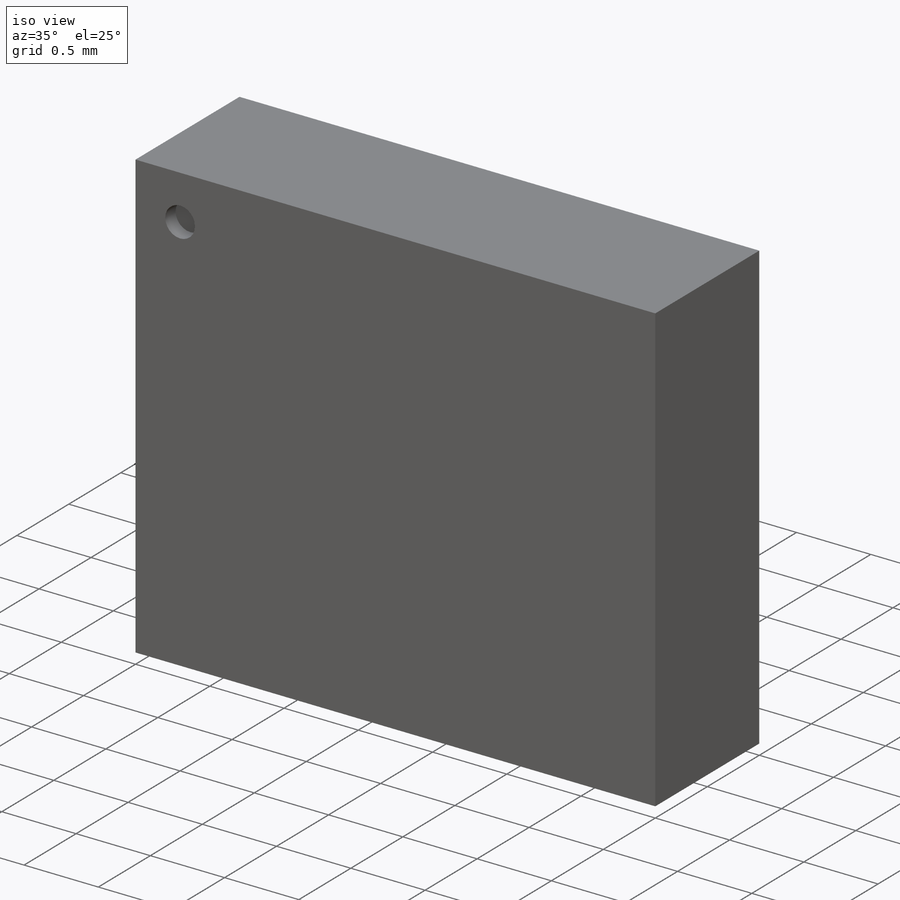
[diagram: iso view]
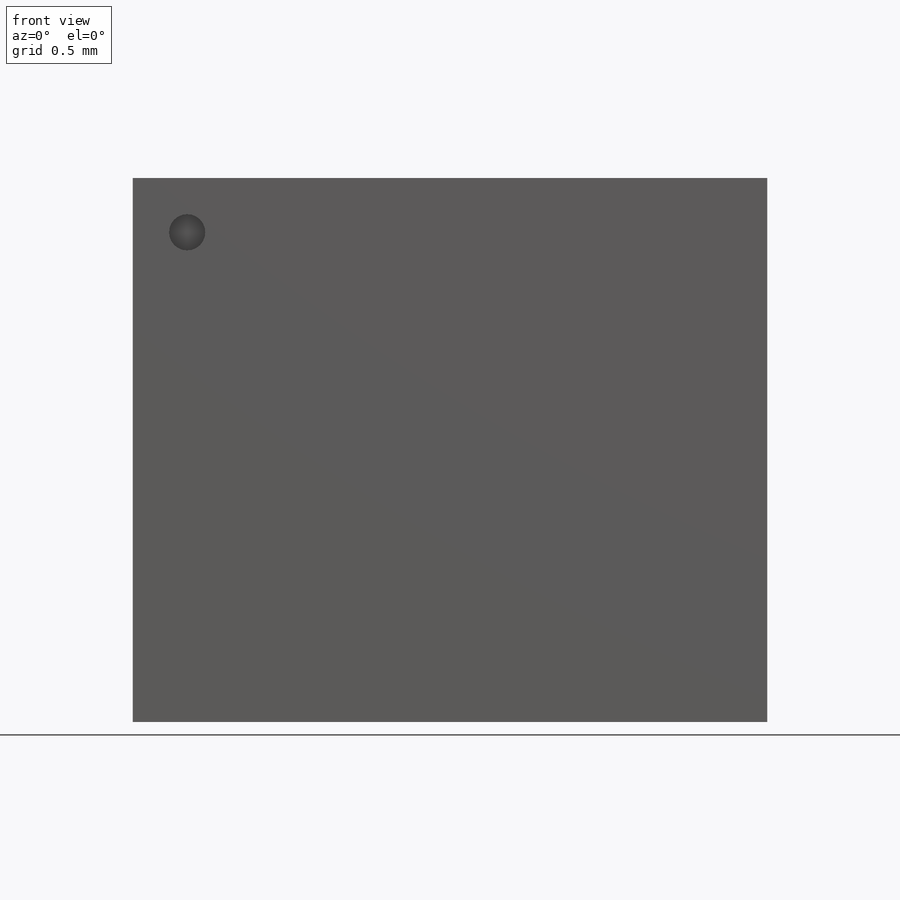
[diagram: front view]
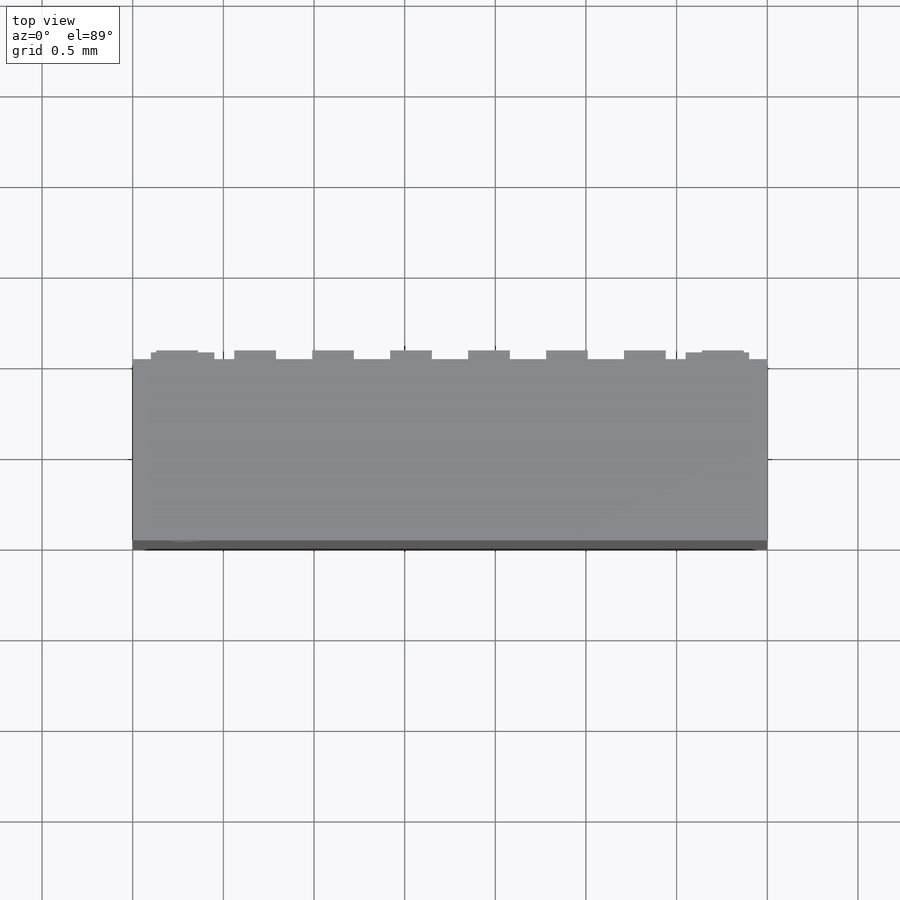
[diagram: top view]
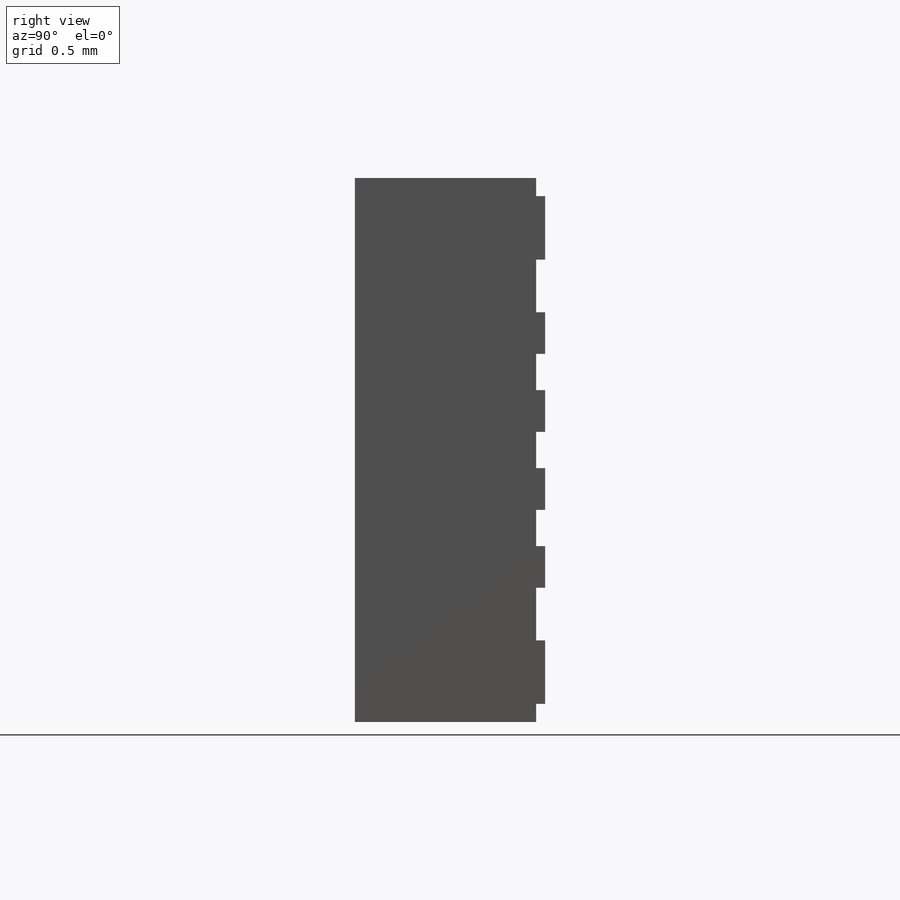
[diagram: right view]
SOLIDWORKS PART (.sldprt)
format: sldprt  version: not decoded by parser v0  size: 263,168 bytes
history: native  units: mm
features: sketch x3, extrude x2, material x1, cut_extrude x1 (+13 scaffold rows collapsed)
feature tree (20):
  scaffold x13  (default folders/planes/origin — collapsed)
  material  "Material <not specified>"
  sketch  "Sketch1"  dims[c1.D1=3.5mm c1.D2=3.0mm c2.D1=3.5mm c2.D2=3.0mm]
  extrude  "Boss-Extrude1"  Depth=1mm
  sketch  "Sketch2"  dims[D3=0.2mm D1=0.3mm D2=0.3mm]
  cut_extrude  "Cut-Extrude1"  Depth=0.1mm
  sketch  "Sketch3"  dims[c1.D1=0.35mm c1.D2=0.23mm c1.D3=0.1mm c1.D4=1.505mm c1.D6=0.35mm c1.D7=0.23mm c1.D8=0.1mm c1.D9=0.645mm c1.D11=~0.239992mm c2.D11=135.0deg c2.D12=0.25mm c2.D5=8.0 c2.D10=4.0]
  extrude  "Boss-Extrude2"  Depth=0.05mm
decode coverage: 6 of 6 modeling features carry decoded parameters
note: ~ marks probable driven/reference dimensions
note: suppression state not decoded; provenance and decode notes live in map.json
